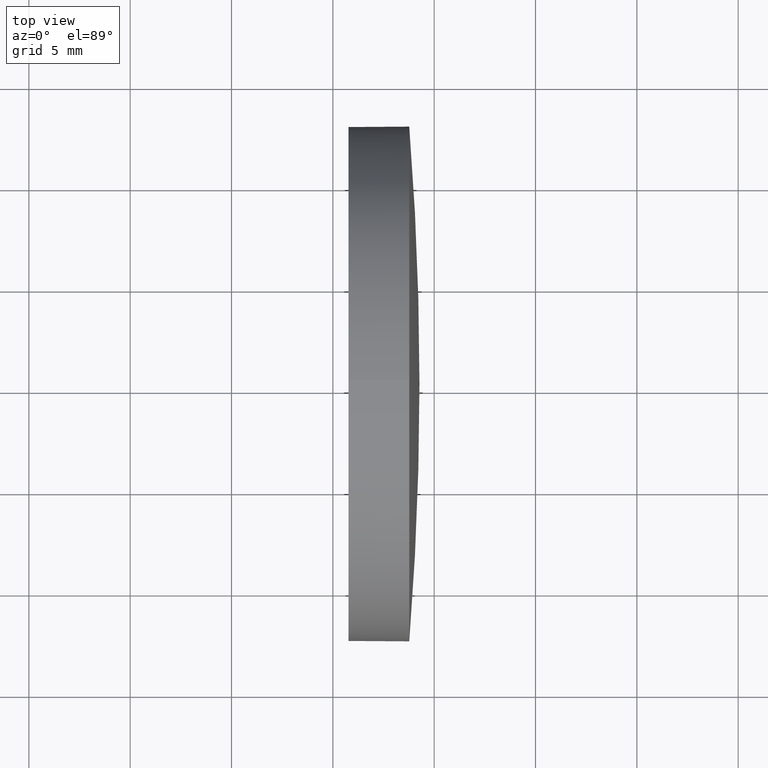
[diagram: clean part render]
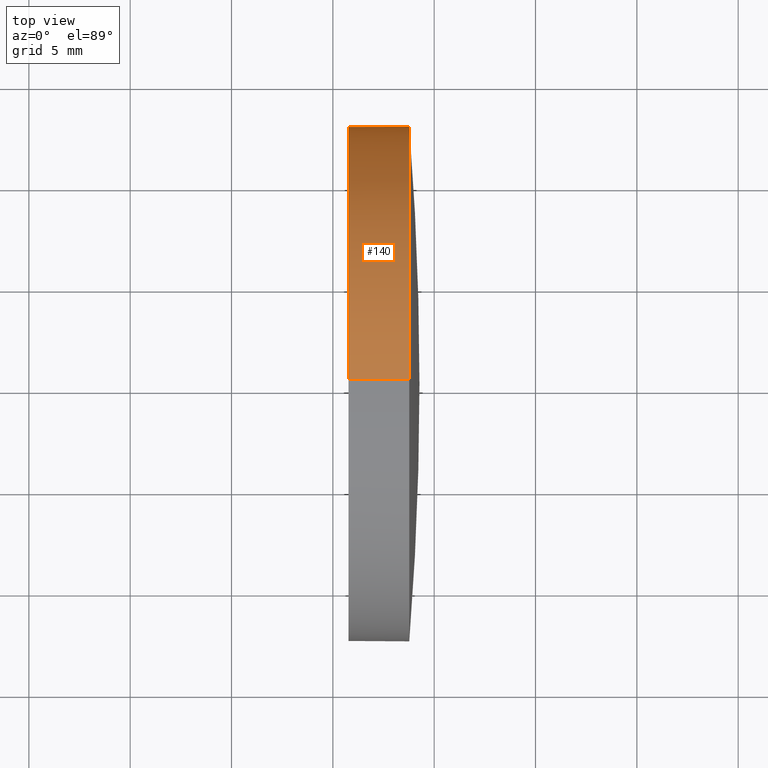
[diagram: same view with one face highlighted and labeled with its STEP entity id]
A machine part, top view. The second image highlights one B-rep face of the part: STEP entity #140.
In plain terms, the highlighted cylindrical surface (partial cylindrical patch) has radius 12.7 mm, axis along (-1, -0, -0).
Its self-contained STEP definition (entity closure, byte-faithful):
#2 = EDGE_CURVE ( 'NONE', #8, #50, #66, .T. ) ;
#4 = ORIENTED_EDGE ( 'NONE', *, *, #44, .T. ) ;
#5 = DIRECTION ( 'NONE',  ( -1.000000000000000000, -0.0000000000000000000, -0.0000000000000000000 ) ) ;
#8 = VERTEX_POINT ( 'NONE', #145 ) ;
#21 = EDGE_CURVE ( 'NONE', #72, #50, #99, .T. ) ;
#25 = VECTOR ( 'NONE', #36, 1000.000000000000000 ) ;
#31 = ORIENTED_EDGE ( 'NONE', *, *, #40, .F. ) ;
#35 = DIRECTION ( 'NONE',  ( -1.000000000000000000, -0.0000000000000000000, -0.0000000000000000000 ) ) ;
#36 = DIRECTION ( 'NONE',  ( -1.000000000000000000, -0.0000000000000000000, -0.0000000000000000000 ) ) ;
#39 = CARTESIAN_POINT ( 'NONE',  ( 118.7701833425342200, 77.93355492641215700, 0.0000000000000000000 ) ) ;
#40 = EDGE_CURVE ( 'NONE', #176, #72, #116, .T. ) ;
#44 = EDGE_CURVE ( 'NONE', #178, #8, #95, .T. ) ;
#50 = VERTEX_POINT ( 'NONE', #69 ) ;
#52 = CARTESIAN_POINT ( 'NONE',  ( 115.7736064308381300, 65.23355492641219700, 0.0000000000000000000 ) ) ;
#56 = DIRECTION ( 'NONE',  ( 0.0000000000000000000, 0.0000000000000000000, 1.000000000000000000 ) ) ;
#57 = CARTESIAN_POINT ( 'NONE',  ( 118.7701833425342200, 65.23355492641219700, 0.0000000000000000000 ) ) ;
#58 = EDGE_CURVE ( 'NONE', #176, #178, #163, .T. ) ;
#66 = LINE ( 'NONE', #132, #172 ) ;
#69 = CARTESIAN_POINT ( 'NONE',  ( 115.7736064308381300, 65.23355492641219700, -12.70000000000000300 ) ) ;
#71 = ORIENTED_EDGE ( 'NONE', *, *, #58, .T. ) ;
#72 = VERTEX_POINT ( 'NONE', #134 ) ;
#83 = DIRECTION ( 'NONE',  ( 0.0000000000000000000, 0.0000000000000000000, 1.000000000000000000 ) ) ;
#88 = FACE_OUTER_BOUND ( 'NONE', #104, .T. ) ;
#92 = ORIENTED_EDGE ( 'NONE', *, *, #21, .F. ) ;
#95 = CIRCLE ( 'NONE', #162, 12.70000000000000300 ) ;
#99 = CIRCLE ( 'NONE', #125, 12.70000000000000300 ) ;
#100 = DIRECTION ( 'NONE',  ( -1.000000000000000000, -0.0000000000000000000, -0.0000000000000000000 ) ) ;
#103 = AXIS2_PLACEMENT_3D ( 'NONE', #124, #100, #169 ) ;
#104 = EDGE_LOOP ( 'NONE', ( #4, #142, #92, #31, #71 ) ) ;
#110 = DIRECTION ( 'NONE',  ( -1.000000000000000000, -0.0000000000000000000, -0.0000000000000000000 ) ) ;
#116 = LINE ( 'NONE', #165, #25 ) ;
#120 = DIRECTION ( 'NONE',  ( -1.000000000000000000, -0.0000000000000000000, -0.0000000000000000000 ) ) ;
#124 = CARTESIAN_POINT ( 'NONE',  ( 110.1653732284884500, 65.23355492641219700, 0.0000000000000000000 ) ) ;
#125 = AXIS2_PLACEMENT_3D ( 'NONE', #52, #35, #83 ) ;
#132 = CARTESIAN_POINT ( 'NONE',  ( 110.1653732284884500, 65.23355492641219700, -12.70000000000000300 ) ) ;
#134 = CARTESIAN_POINT ( 'NONE',  ( 115.7736064308381300, 65.23355492641219700, 12.70000000000000300 ) ) ;
#137 = DIRECTION ( 'NONE',  ( 0.0000000000000000000, 0.0000000000000000000, 1.000000000000000000 ) ) ;
#140 = ADVANCED_FACE ( 'NONE', ( #88 ), #173, .T. ) ;
#142 = ORIENTED_EDGE ( 'NONE', *, *, #2, .T. ) ;
#145 = CARTESIAN_POINT ( 'NONE',  ( 118.7701833425342200, 65.23355492641219700, -12.70000000000000300 ) ) ;
#159 = AXIS2_PLACEMENT_3D ( 'NONE', #182, #110, #137 ) ;
#162 = AXIS2_PLACEMENT_3D ( 'NONE', #57, #120, #56 ) ;
#163 = CIRCLE ( 'NONE', #159, 12.70000000000000300 ) ;
#165 = CARTESIAN_POINT ( 'NONE',  ( 110.1653732284884500, 65.23355492641219700, 12.70000000000000300 ) ) ;
#169 = DIRECTION ( 'NONE',  ( 0.0000000000000000000, 0.0000000000000000000, 1.000000000000000000 ) ) ;
#172 = VECTOR ( 'NONE', #5, 1000.000000000000000 ) ;
#173 = CYLINDRICAL_SURFACE ( 'NONE', #103, 12.70000000000000300 ) ;
#176 = VERTEX_POINT ( 'NONE', #180 ) ;
#178 = VERTEX_POINT ( 'NONE', #39 ) ;
#180 = CARTESIAN_POINT ( 'NONE',  ( 118.7701833425342200, 65.23355492641219700, 12.70000000000000300 ) ) ;
#182 = CARTESIAN_POINT ( 'NONE',  ( 118.7701833425342200, 65.23355492641219700, 0.0000000000000000000 ) ) ;